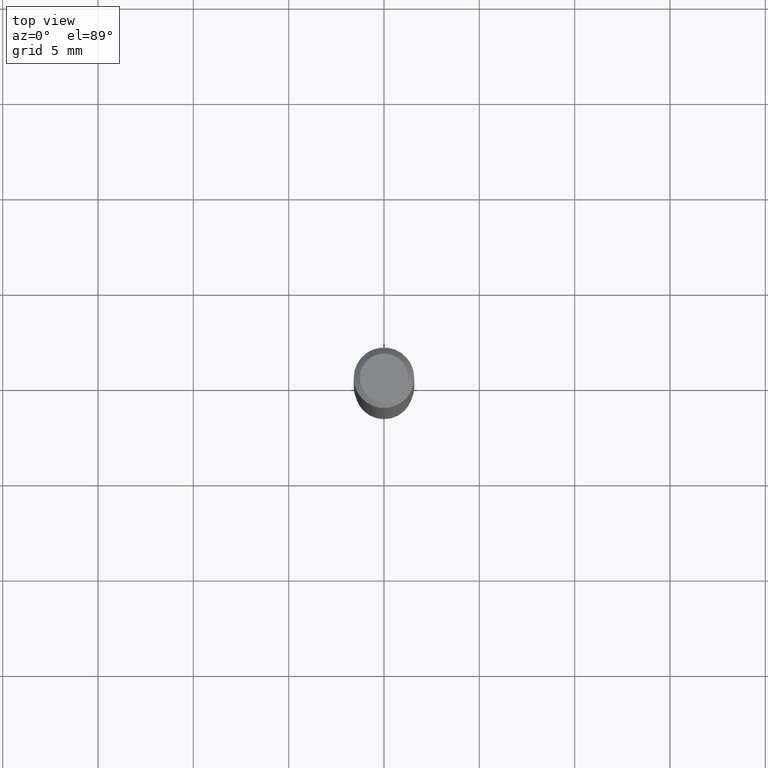
[diagram: clean part render]
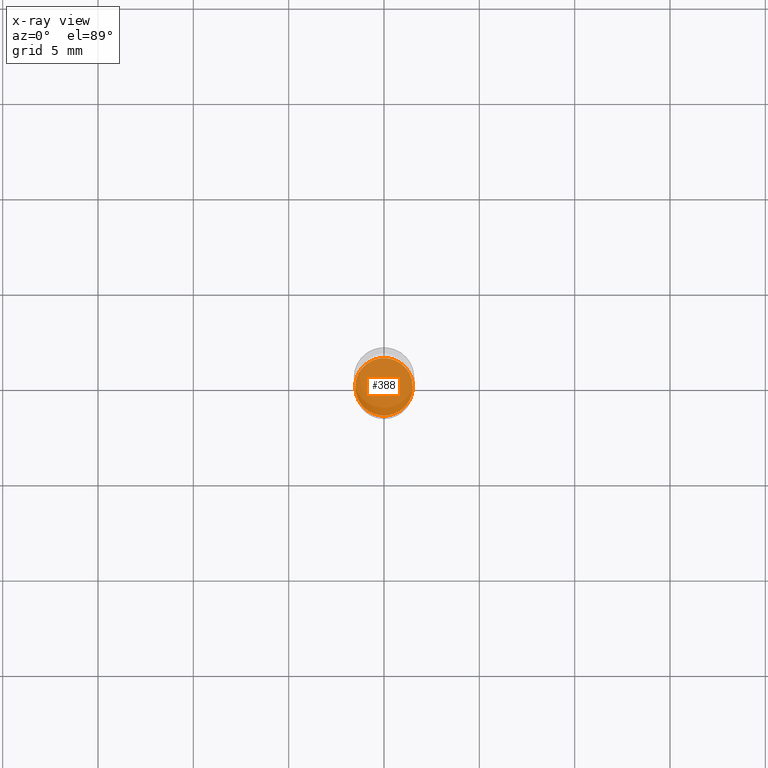
[diagram: x-ray — body ghosted, one internal face saturated and labeled with its STEP entity id]
A machine part, top view, then the same camera in x-ray: the body is ghosted and one INTERNAL B-rep face — a face not visible from any outside direction — is saturated and labeled: STEP entity #388.
In plain terms, the highlighted planar face has unit normal (-0, 0, 1).
Its self-contained STEP definition (entity closure, byte-faithful):
#19 = AXIS2_PLACEMENT_3D ( 'NONE', #364, #134, #338 ) ;
#24 = VERTEX_POINT ( 'NONE', #140 ) ;
#75 = EDGE_CURVE ( 'NONE', #461, #24, #322, .T. ) ;
#82 = AXIS2_PLACEMENT_3D ( 'NONE', #444, #362, #108 ) ;
#87 = EDGE_CURVE ( 'NONE', #24, #461, #301, .T. ) ;
#108 = DIRECTION ( 'NONE',  ( 1.000000000000000000, -6.982962677686265922E-15, 4.876176775795935793E-29 ) ) ;
#131 = ORIENTED_EDGE ( 'NONE', *, *, #75, .F. ) ;
#134 = DIRECTION ( 'NONE',  ( -2.445468806185136597E-29, 3.491481338843145583E-15, 1.000000000000000000 ) ) ;
#135 = PLANE ( 'NONE',  #82 ) ;
#140 = CARTESIAN_POINT ( 'NONE',  ( -0.05954999999999999877, -3.414852046408209692E-15, -1.100000000000000089 ) ) ;
#162 = EDGE_LOOP ( 'NONE', ( #131, #391 ) ) ;
#244 = DIRECTION ( 'NONE',  ( -2.445468806185136597E-29, 3.491481338843145583E-15, 1.000000000000000000 ) ) ;
#301 = CIRCLE ( 'NONE', #358, 0.05954999999999999877 ) ;
#322 = CIRCLE ( 'NONE', #19, 0.05954999999999999877 ) ;
#338 = DIRECTION ( 'NONE',  ( 1.000000000000000000, -6.982962677686265133E-15, 0.000000000000000000 ) ) ;
#358 = AXIS2_PLACEMENT_3D ( 'NONE', #409, #244, #476 ) ;
#362 = DIRECTION ( 'NONE',  ( -2.438088387897960049E-29, 3.491481338843145188E-15, 1.000000000000000000 ) ) ;
#364 = CARTESIAN_POINT ( 'NONE',  ( 2.690015686803650369E-29, -3.840629472727460101E-15, -1.100000000000000089 ) ) ;
#388 = ADVANCED_FACE ( 'NONE', ( #475 ), #135, .F. ) ;
#391 = ORIENTED_EDGE ( 'NONE', *, *, #87, .F. ) ;
#409 = CARTESIAN_POINT ( 'NONE',  ( 2.690015686803650369E-29, -3.840629472727460101E-15, -1.100000000000000089 ) ) ;
#444 = CARTESIAN_POINT ( 'NONE',  ( 2.690015686803650369E-29, -3.840629472727460101E-15, -1.100000000000000089 ) ) ;
#461 = VERTEX_POINT ( 'NONE', #464 ) ;
#464 = CARTESIAN_POINT ( 'NONE',  ( 0.05954999999999999877, -4.256464900183677240E-15, -1.100000000000000089 ) ) ;
#475 = FACE_OUTER_BOUND ( 'NONE', #162, .T. ) ;
#476 = DIRECTION ( 'NONE',  ( 1.000000000000000000, -6.982962677686265133E-15, 0.000000000000000000 ) ) ;